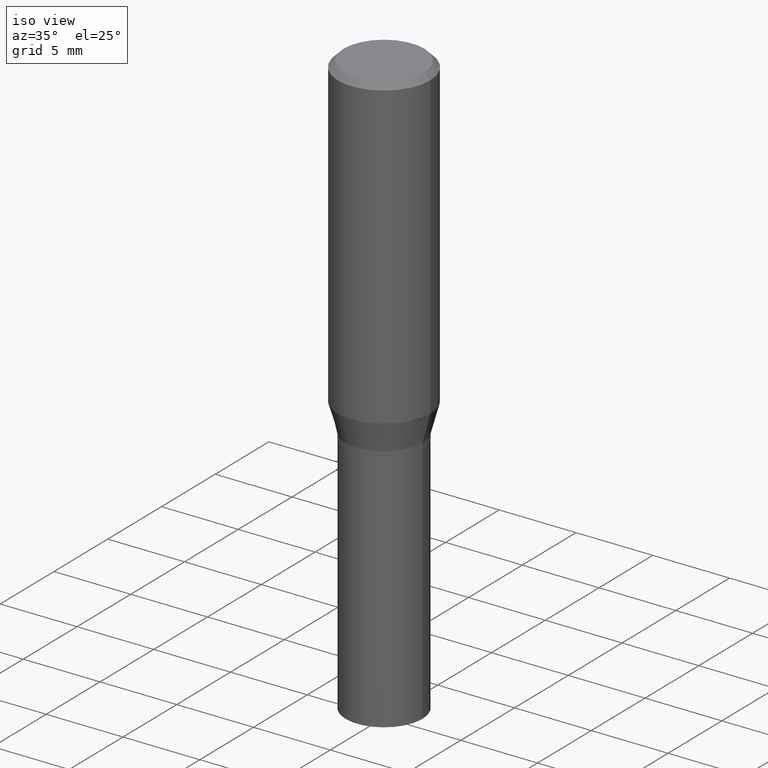
[diagram: clean part render]
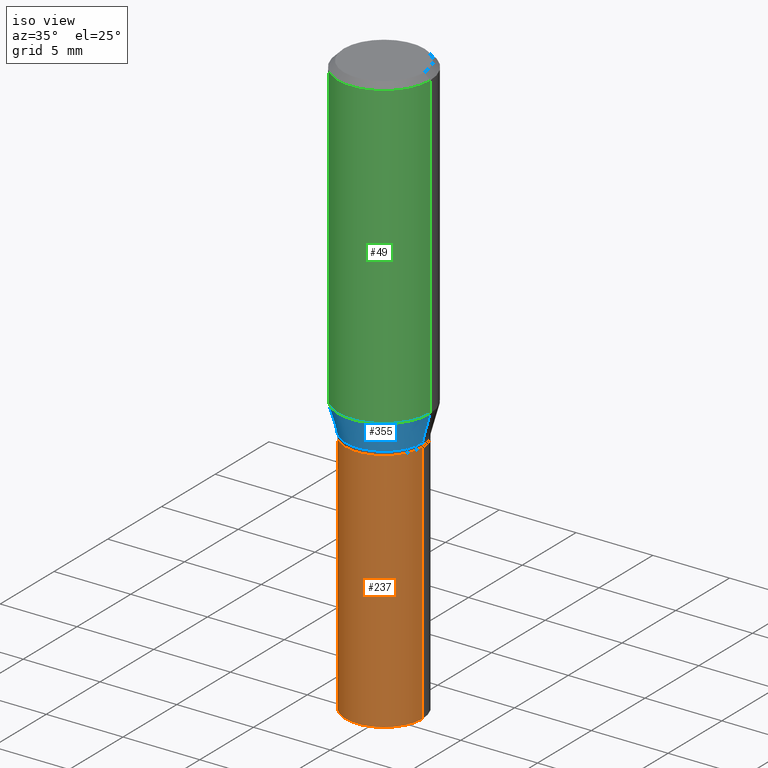
[diagram: same view with three faces highlighted in distinct colors, each labeled with its STEP entity id]
A machine part, iso view with three faces highlighted in distinct colors.
Their STEP definitions:

[orange] entity #237 — the highlighted cylindrical surface (partial cylindrical patch) has radius 2.5006 mm, axis along (-0, 0, 1).
#7 = AXIS2_PLACEMENT_3D ( 'NONE', #168, #421, #238 ) ;
#32 = DIRECTION ( 'NONE',  ( 1.000000000000000000, -6.982962677686265922E-15, 0.000000000000000000 ) ) ;
#54 = ORIENTED_EDGE ( 'NONE', *, *, #388, .F. ) ;
#57 = EDGE_CURVE ( 'NONE', #105, #151, #230, .T. ) ;
#62 = CARTESIAN_POINT ( 'NONE',  ( -0.09844999999999999585, -3.438050637240251581E-15, -0.8701000000000000956 ) ) ;
#101 = CARTESIAN_POINT ( 'NONE',  ( 0.09844999999999999585, -5.924694683882931526E-15, -1.500000000000000222 ) ) ;
#105 = VERTEX_POINT ( 'NONE', #410 ) ;
#121 = VECTOR ( 'NONE', #150, 39.37007874015748143 ) ;
#128 = DIRECTION ( 'NONE',  ( -2.445468806185136877E-29, 3.491481338843145188E-15, 1.000000000000000000 ) ) ;
#139 = CARTESIAN_POINT ( 'NONE',  ( 2.127802408261687534E-29, -3.037937912927421601E-15, -0.8701000000000000956 ) ) ;
#140 = VERTEX_POINT ( 'NONE', #345 ) ;
#141 = AXIS2_PLACEMENT_3D ( 'NONE', #139, #326, #32 ) ;
#145 = ORIENTED_EDGE ( 'NONE', *, *, #291, .T. ) ;
#150 = DIRECTION ( 'NONE',  ( -2.445468806185136877E-29, 3.491481338843145188E-15, 1.000000000000000000 ) ) ;
#151 = VERTEX_POINT ( 'NONE', #62 ) ;
#168 = CARTESIAN_POINT ( 'NONE',  ( 3.668203209277704895E-29, -5.237222008264718177E-15, -1.500000000000000222 ) ) ;
#170 = AXIS2_PLACEMENT_3D ( 'NONE', #452, #310, #451 ) ;
#181 = EDGE_LOOP ( 'NONE', ( #327, #145, #394, #54 ) ) ;
#221 = CIRCLE ( 'NONE', #141, 0.09844999999999999585 ) ;
#230 = LINE ( 'NONE', #402, #353 ) ;
#237 = ADVANCED_FACE ( 'NONE', ( #415 ), #418, .T. ) ;
#238 = DIRECTION ( 'NONE',  ( 1.000000000000000000, -6.982962677686265922E-15, 0.000000000000000000 ) ) ;
#246 = VERTEX_POINT ( 'NONE', #101 ) ;
#291 = EDGE_CURVE ( 'NONE', #105, #246, #436, .T. ) ;
#310 = DIRECTION ( 'NONE',  ( -2.445468806185136597E-29, 3.491481338843145583E-15, 1.000000000000000000 ) ) ;
#326 = DIRECTION ( 'NONE',  ( -2.445468806185136597E-29, 3.491481338843145583E-15, 1.000000000000000000 ) ) ;
#327 = ORIENTED_EDGE ( 'NONE', *, *, #57, .F. ) ;
#345 = CARTESIAN_POINT ( 'NONE',  ( 0.09844999999999999585, -3.725410588545634555E-15, -0.8701000000000000956 ) ) ;
#353 = VECTOR ( 'NONE', #128, 39.37007874015748143 ) ;
#356 = CARTESIAN_POINT ( 'NONE',  ( 0.09844999999999999585, -6.874726756182129545E-16, 4.800596035771099214E-30 ) ) ;
#388 = EDGE_CURVE ( 'NONE', #151, #140, #221, .T. ) ;
#390 = LINE ( 'NONE', #356, #121 ) ;
#394 = ORIENTED_EDGE ( 'NONE', *, *, #461, .T. ) ;
#402 = CARTESIAN_POINT ( 'NONE',  ( -0.09844999999999999585, 6.995293233558186035E-16, -4.842691596355954042E-30 ) ) ;
#410 = CARTESIAN_POINT ( 'NONE',  ( -0.09844999999999999585, -3.438050637240251581E-15, -1.500000000000000222 ) ) ;
#415 = FACE_OUTER_BOUND ( 'NONE', #181, .T. ) ;
#418 = CYLINDRICAL_SURFACE ( 'NONE', #170, 0.09844999999999999585 ) ;
#421 = DIRECTION ( 'NONE',  ( -2.445468806185136597E-29, 3.491481338843145583E-15, 1.000000000000000000 ) ) ;
#436 = CIRCLE ( 'NONE', #7, 0.09844999999999999585 ) ;
#451 = DIRECTION ( 'NONE',  ( 1.000000000000000000, -6.982962677686266711E-15, 4.876176775795936353E-29 ) ) ;
#452 = CARTESIAN_POINT ( 'NONE',  ( 0.000000000000000000, 0.000000000000000000, 0.000000000000000000 ) ) ;
#461 = EDGE_CURVE ( 'NONE', #246, #140, #390, .T. ) ;

[blue] entity #355 — the highlighted conical surface has half-angle 15 deg.
#3 = DIRECTION ( 'NONE',  ( -0.2588190451025215166, 5.211531920934551042E-15, 0.9659258262890679791 ) ) ;
#9 = VECTOR ( 'NONE', #3, 39.37007874015748143 ) ;
#16 = DIRECTION ( 'NONE',  ( -2.445468806185136597E-29, 3.491481338843145583E-15, 1.000000000000000000 ) ) ;
#41 = EDGE_CURVE ( 'NONE', #380, #70, #228, .T. ) ;
#43 = ORIENTED_EDGE ( 'NONE', *, *, #438, .F. ) ;
#51 = CARTESIAN_POINT ( 'NONE',  ( 0.09845000000000017626, -3.690495775157203695E-15, -0.8601000000000000867 ) ) ;
#67 = AXIS2_PLACEMENT_3D ( 'NONE', #286, #69, #208 ) ;
#68 = DIRECTION ( 'NONE',  ( -2.445468806185136597E-29, 3.491481338843145583E-15, 1.000000000000000000 ) ) ;
#69 = DIRECTION ( 'NONE',  ( -2.445468806185136597E-29, 3.491481338843145583E-15, 1.000000000000000000 ) ) ;
#70 = VERTEX_POINT ( 'NONE', #51 ) ;
#88 = VERTEX_POINT ( 'NONE', #303 ) ;
#104 = CARTESIAN_POINT ( 'NONE',  ( -0.09845000000000017626, -2.303493776183169474E-15, -0.8601000000000000867 ) ) ;
#107 = ORIENTED_EDGE ( 'NONE', *, *, #41, .T. ) ;
#109 = LINE ( 'NONE', #142, #294 ) ;
#124 = CARTESIAN_POINT ( 'NONE',  ( 2.103347720199836269E-29, -3.003023099538989951E-15, -0.8601000000000000867 ) ) ;
#142 = CARTESIAN_POINT ( 'NONE',  ( 0.09845000000000017626, -3.690495775157203695E-15, -0.8601000000000000867 ) ) ;
#146 = DIRECTION ( 'NONE',  ( 0.2588190451025215166, 1.565188264969620784E-15, 0.9659258262890679791 ) ) ;
#194 = AXIS2_PLACEMENT_3D ( 'NONE', #124, #16, #196 ) ;
#196 = DIRECTION ( 'NONE',  ( 1.000000000000000000, -6.982962677686267499E-15, 0.000000000000000000 ) ) ;
#208 = DIRECTION ( 'NONE',  ( 1.000000000000000000, -6.982962677686269077E-15, 0.000000000000000000 ) ) ;
#211 = EDGE_LOOP ( 'NONE', ( #43, #107, #462, #400 ) ) ;
#214 = CARTESIAN_POINT ( 'NONE',  ( 2.103347720199836269E-29, -3.003023099538989951E-15, -0.8601000000000000867 ) ) ;
#220 = VERTEX_POINT ( 'NONE', #273 ) ;
#228 = CIRCLE ( 'NONE', #194, 0.09845000000000017626 ) ;
#242 = AXIS2_PLACEMENT_3D ( 'NONE', #214, #68, #358 ) ;
#248 = FACE_OUTER_BOUND ( 'NONE', #211, .T. ) ;
#273 = CARTESIAN_POINT ( 'NONE',  ( 0.1180999999999999966, -3.571663911781501372E-15, -0.7867652016312725038 ) ) ;
#282 = CARTESIAN_POINT ( 'NONE',  ( -0.09845000000000017626, -2.105659412398621996E-15, -0.8601000000000000867 ) ) ;
#286 = CARTESIAN_POINT ( 'NONE',  ( 1.924009758381236534E-29, -2.746976019546752715E-15, -0.7867652016312725038 ) ) ;
#294 = VECTOR ( 'NONE', #146, 39.37007874015748143 ) ;
#301 = CIRCLE ( 'NONE', #67, 0.1180999999999999966 ) ;
#303 = CARTESIAN_POINT ( 'NONE',  ( -0.1180999999999999966, -1.907825048614074518E-15, -0.7867652016312725038 ) ) ;
#306 = EDGE_CURVE ( 'NONE', #70, #220, #109, .T. ) ;
#342 = EDGE_CURVE ( 'NONE', #88, #220, #301, .T. ) ;
#355 = ADVANCED_FACE ( 'NONE', ( #248 ), #389, .T. ) ;
#358 = DIRECTION ( 'NONE',  ( 1.000000000000000000, -6.982962677686267499E-15, 0.000000000000000000 ) ) ;
#380 = VERTEX_POINT ( 'NONE', #282 ) ;
#389 = CONICAL_SURFACE ( 'NONE', #242, 0.09845000000000017626, 0.2617993877991502405 ) ;
#393 = LINE ( 'NONE', #104, #9 ) ;
#400 = ORIENTED_EDGE ( 'NONE', *, *, #342, .F. ) ;
#438 = EDGE_CURVE ( 'NONE', #380, #88, #393, .T. ) ;
#462 = ORIENTED_EDGE ( 'NONE', *, *, #306, .T. ) ;

[green] entity #49 — the highlighted cylindrical surface (partial cylindrical patch) has radius 2.9997 mm, axis along (-0, 0, 1).
#1 = CARTESIAN_POINT ( 'NONE',  ( 3.668203209277705088E-31, -5.237222008264718399E-17, -0.01499999999999999944 ) ) ;
#5 = EDGE_CURVE ( 'NONE', #220, #175, #407, .T. ) ;
#17 = VECTOR ( 'NONE', #351, 39.37007874015748143 ) ;
#40 = VERTEX_POINT ( 'NONE', #52 ) ;
#49 = ADVANCED_FACE ( 'NONE', ( #89 ), #122, .T. ) ;
#52 = CARTESIAN_POINT ( 'NONE',  ( -0.1180999999999999966, -5.605231488820216014E-16, -0.01499999999999999944 ) ) ;
#59 = CARTESIAN_POINT ( 'NONE',  ( -0.1180999999999999966, 8.391509709326782957E-16, -5.809262341591043784E-30 ) ) ;
#61 = CIRCLE ( 'NONE', #269, 0.1180999999999999966 ) ;
#67 = AXIS2_PLACEMENT_3D ( 'NONE', #286, #69, #208 ) ;
#69 = DIRECTION ( 'NONE',  ( -2.445468806185136597E-29, 3.491481338843145583E-15, 1.000000000000000000 ) ) ;
#87 = CARTESIAN_POINT ( 'NONE',  ( 0.1180999999999999966, -8.246878922347480654E-16, 5.758764772215000440E-30 ) ) ;
#88 = VERTEX_POINT ( 'NONE', #303 ) ;
#89 = FACE_OUTER_BOUND ( 'NONE', #188, .T. ) ;
#93 = AXIS2_PLACEMENT_3D ( 'NONE', #335, #305, #159 ) ;
#113 = DIRECTION ( 'NONE',  ( 1.000000000000000000, -6.982962677686266711E-15, 0.000000000000000000 ) ) ;
#114 = ORIENTED_EDGE ( 'NONE', *, *, #342, .T. ) ;
#116 = ORIENTED_EDGE ( 'NONE', *, *, #338, .F. ) ;
#122 = CYLINDRICAL_SURFACE ( 'NONE', #93, 0.1180999999999999966 ) ;
#131 = ORIENTED_EDGE ( 'NONE', *, *, #258, .F. ) ;
#159 = DIRECTION ( 'NONE',  ( 1.000000000000000000, -6.982962677686266711E-15, 4.876176775795936353E-29 ) ) ;
#162 = ORIENTED_EDGE ( 'NONE', *, *, #5, .T. ) ;
#165 = CARTESIAN_POINT ( 'NONE',  ( 0.1180999999999999966, -8.770601123173952432E-16, -0.01499999999999999944 ) ) ;
#175 = VERTEX_POINT ( 'NONE', #165 ) ;
#178 = VECTOR ( 'NONE', #257, 39.37007874015748143 ) ;
#188 = EDGE_LOOP ( 'NONE', ( #131, #114, #162, #116 ) ) ;
#208 = DIRECTION ( 'NONE',  ( 1.000000000000000000, -6.982962677686269077E-15, 0.000000000000000000 ) ) ;
#220 = VERTEX_POINT ( 'NONE', #273 ) ;
#233 = LINE ( 'NONE', #59, #17 ) ;
#257 = DIRECTION ( 'NONE',  ( -2.445468806185136877E-29, 3.491481338843145188E-15, 1.000000000000000000 ) ) ;
#258 = EDGE_CURVE ( 'NONE', #88, #40, #233, .T. ) ;
#269 = AXIS2_PLACEMENT_3D ( 'NONE', #1, #292, #113 ) ;
#273 = CARTESIAN_POINT ( 'NONE',  ( 0.1180999999999999966, -3.571663911781501372E-15, -0.7867652016312725038 ) ) ;
#286 = CARTESIAN_POINT ( 'NONE',  ( 1.924009758381236534E-29, -2.746976019546752715E-15, -0.7867652016312725038 ) ) ;
#292 = DIRECTION ( 'NONE',  ( -2.445468806185136597E-29, 3.491481338843145583E-15, 1.000000000000000000 ) ) ;
#301 = CIRCLE ( 'NONE', #67, 0.1180999999999999966 ) ;
#303 = CARTESIAN_POINT ( 'NONE',  ( -0.1180999999999999966, -1.907825048614074518E-15, -0.7867652016312725038 ) ) ;
#305 = DIRECTION ( 'NONE',  ( -2.445468806185136597E-29, 3.491481338843145583E-15, 1.000000000000000000 ) ) ;
#335 = CARTESIAN_POINT ( 'NONE',  ( 0.000000000000000000, 0.000000000000000000, 0.000000000000000000 ) ) ;
#338 = EDGE_CURVE ( 'NONE', #40, #175, #61, .T. ) ;
#342 = EDGE_CURVE ( 'NONE', #88, #220, #301, .T. ) ;
#351 = DIRECTION ( 'NONE',  ( -2.445468806185136877E-29, 3.491481338843145188E-15, 1.000000000000000000 ) ) ;
#407 = LINE ( 'NONE', #87, #178 ) ;